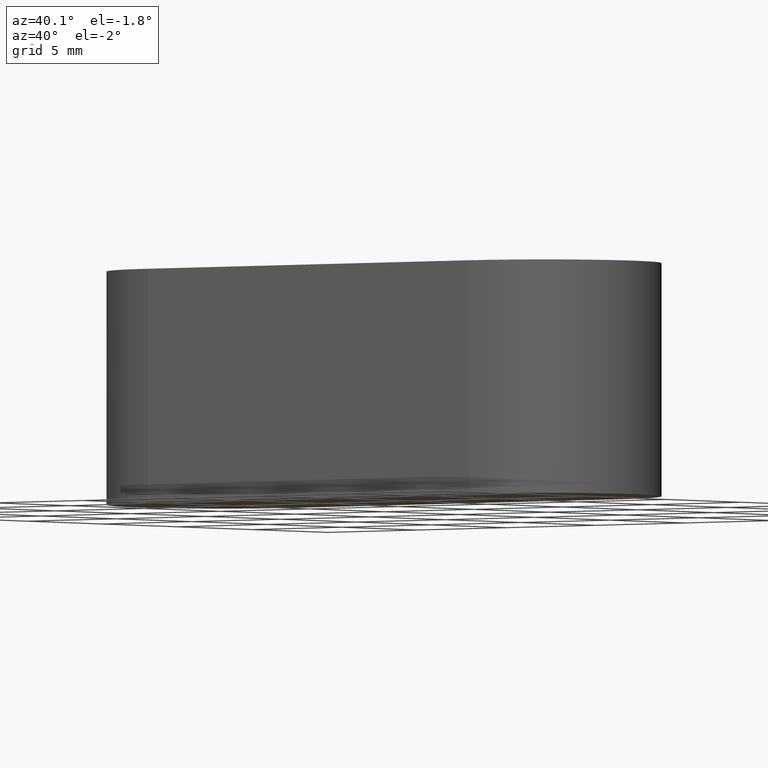
[diagram: clean part render]
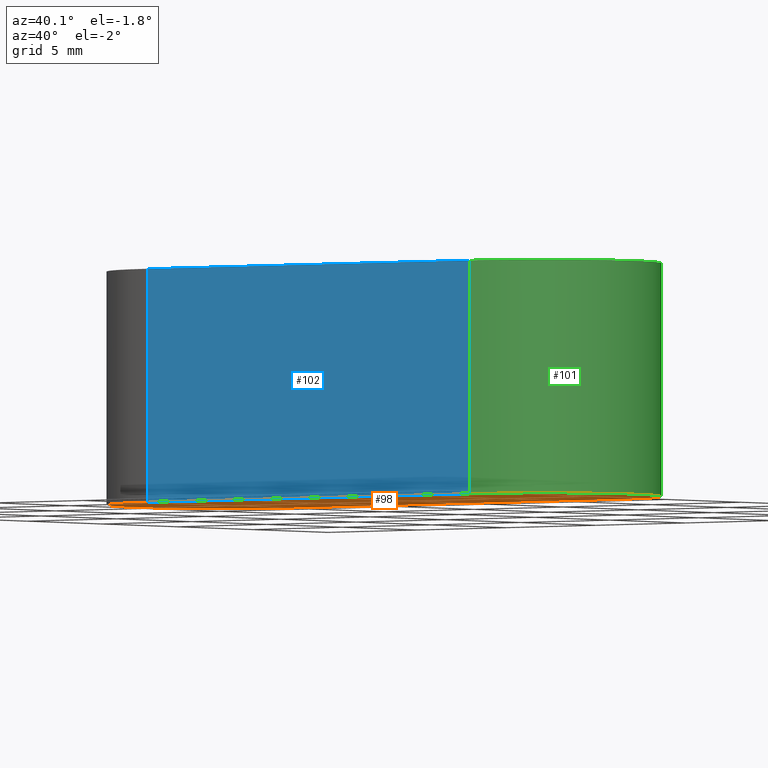
[diagram: same view with three faces highlighted in distinct colors, each labeled with its STEP entity id]
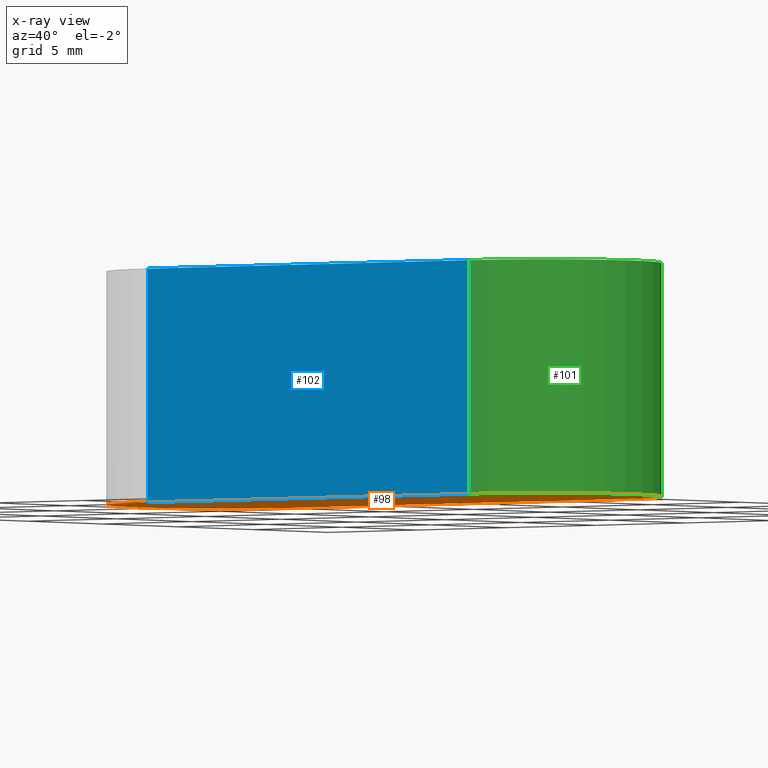
[diagram: x-ray of the same camera — body ghosted, the three highlighted faces saturated]
A machine part, auxiliary view with three faces highlighted in distinct colors.
The next image is the same camera in x-ray (body ghosted, the three faces saturated) — at least one of them is partly hidden behind the body in this view.
Their STEP definitions:

[orange] entity #98 — the highlighted planar face has unit normal (0, 0, 1).
#16=FACE_OUTER_BOUND('',#22,.T.);
#22=EDGE_LOOP('',(#68,#69,#70,#71));
#28=LINE('',#170,#36);
#29=LINE('',#173,#37);
#36=VECTOR('',#140,10.);
#37=VECTOR('',#143,10.);
#44=CIRCLE('',#125,5.);
#45=CIRCLE('',#126,5.);
#48=VERTEX_POINT('',#166);
#49=VERTEX_POINT('',#167);
#50=VERTEX_POINT('',#169);
#51=VERTEX_POINT('',#171);
#56=EDGE_CURVE('',#48,#49,#44,.T.);
#57=EDGE_CURVE('',#50,#48,#28,.T.);
#58=EDGE_CURVE('',#51,#50,#45,.T.);
#59=EDGE_CURVE('',#49,#51,#29,.T.);
#68=ORIENTED_EDGE('',*,*,#56,.F.);
#69=ORIENTED_EDGE('',*,*,#57,.F.);
#70=ORIENTED_EDGE('',*,*,#58,.F.);
#71=ORIENTED_EDGE('',*,*,#59,.F.);
#92=PLANE('',#124);
#98=ADVANCED_FACE('',(#16),#92,.F.);
#124=AXIS2_PLACEMENT_3D('',#165,#136,#137);
#125=AXIS2_PLACEMENT_3D('',#168,#138,#139);
#126=AXIS2_PLACEMENT_3D('',#172,#141,#142);
#136=DIRECTION('center_axis',(0.,0.,1.));
#137=DIRECTION('ref_axis',(1.,0.,0.));
#138=DIRECTION('center_axis',(0.,0.,1.));
#139=DIRECTION('ref_axis',(0.,-1.,0.));
#140=DIRECTION('',(1.,0.,0.));
#141=DIRECTION('center_axis',(0.,0.,1.));
#142=DIRECTION('ref_axis',(-4.44089209850063E-16,1.,0.));
#143=DIRECTION('',(-1.,-1.85037170770859E-16,0.));
#165=CARTESIAN_POINT('Origin',(-1.11022302462516E-15,1.19006027054708E-15,
-5.));
#166=CARTESIAN_POINT('',(9.,-5.,-5.));
#167=CARTESIAN_POINT('',(9.,5.,-5.));
#168=CARTESIAN_POINT('Origin',(9.,2.78214431377604E-15,-5.));
#169=CARTESIAN_POINT('',(-9.,-5.,-5.));
#170=CARTESIAN_POINT('',(-9.,-5.,-5.));
#171=CARTESIAN_POINT('',(-9.00000000000001,5.,-5.));
#172=CARTESIAN_POINT('Origin',(-9.,5.55111512312578E-16,-5.));
#173=CARTESIAN_POINT('',(9.,5.,-5.));

[blue] entity #102 — the highlighted planar face has unit normal (0, -1, 0).
#20=FACE_OUTER_BOUND('',#26,.T.);
#26=EDGE_LOOP('',(#84,#85,#86,#87));
#28=LINE('',#170,#36);
#31=LINE('',#179,#39);
#34=LINE('',#187,#42);
#35=LINE('',#189,#43);
#36=VECTOR('',#140,10.);
#39=VECTOR('',#149,10.);
#42=VECTOR('',#158,10.);
#43=VECTOR('',#161,10.);
#48=VERTEX_POINT('',#166);
#50=VERTEX_POINT('',#169);
#52=VERTEX_POINT('',#175);
#55=VERTEX_POINT('',#185);
#57=EDGE_CURVE('',#50,#48,#28,.T.);
#62=EDGE_CURVE('',#52,#50,#31,.T.);
#66=EDGE_CURVE('',#48,#55,#34,.T.);
#67=EDGE_CURVE('',#55,#52,#35,.T.);
#84=ORIENTED_EDGE('',*,*,#67,.T.);
#85=ORIENTED_EDGE('',*,*,#62,.T.);
#86=ORIENTED_EDGE('',*,*,#57,.T.);
#87=ORIENTED_EDGE('',*,*,#66,.T.);
#94=PLANE('',#132);
#102=ADVANCED_FACE('',(#20),#94,.T.);
#132=AXIS2_PLACEMENT_3D('',#188,#159,#160);
#140=DIRECTION('',(1.,0.,0.));
#149=DIRECTION('',(0.,0.,-1.));
#158=DIRECTION('',(0.,0.,1.));
#159=DIRECTION('center_axis',(0.,-1.,0.));
#160=DIRECTION('ref_axis',(0.,0.,-1.));
#161=DIRECTION('',(-1.,0.,0.));
#166=CARTESIAN_POINT('',(9.,-5.,-5.));
#169=CARTESIAN_POINT('',(-9.,-5.,-5.));
#170=CARTESIAN_POINT('',(-9.,-5.,-5.));
#175=CARTESIAN_POINT('',(-9.,-5.,5.));
#179=CARTESIAN_POINT('',(-9.,-5.,0.));
#185=CARTESIAN_POINT('',(9.,-5.,5.));
#187=CARTESIAN_POINT('',(9.,-5.,0.));
#188=CARTESIAN_POINT('Origin',(9.,-5.,0.));
#189=CARTESIAN_POINT('',(-9.,-5.,5.));

[green] entity #101 — the highlighted cylindrical surface (partial cylindrical patch) has radius 5 mm, axis along (0, 0, 1).
#15=CYLINDRICAL_SURFACE('',#130,5.);
#19=FACE_OUTER_BOUND('',#25,.T.);
#25=EDGE_LOOP('',(#80,#81,#82,#83));
#33=LINE('',#183,#41);
#34=LINE('',#187,#42);
#41=VECTOR('',#153,10.);
#42=VECTOR('',#158,10.);
#44=CIRCLE('',#125,5.);
#47=CIRCLE('',#131,5.);
#48=VERTEX_POINT('',#166);
#49=VERTEX_POINT('',#167);
#54=VERTEX_POINT('',#181);
#55=VERTEX_POINT('',#185);
#56=EDGE_CURVE('',#48,#49,#44,.T.);
#64=EDGE_CURVE('',#49,#54,#33,.T.);
#65=EDGE_CURVE('',#54,#55,#47,.T.);
#66=EDGE_CURVE('',#48,#55,#34,.T.);
#80=ORIENTED_EDGE('',*,*,#65,.T.);
#81=ORIENTED_EDGE('',*,*,#66,.F.);
#82=ORIENTED_EDGE('',*,*,#56,.T.);
#83=ORIENTED_EDGE('',*,*,#64,.T.);
#101=ADVANCED_FACE('',(#19),#15,.T.);
#125=AXIS2_PLACEMENT_3D('',#168,#138,#139);
#130=AXIS2_PLACEMENT_3D('',#184,#154,#155);
#131=AXIS2_PLACEMENT_3D('',#186,#156,#157);
#138=DIRECTION('center_axis',(0.,0.,1.));
#139=DIRECTION('ref_axis',(0.,-1.,0.));
#153=DIRECTION('',(0.,0.,1.));
#154=DIRECTION('center_axis',(0.,0.,1.));
#155=DIRECTION('ref_axis',(0.,-1.,0.));
#156=DIRECTION('center_axis',(0.,0.,-1.));
#157=DIRECTION('ref_axis',(0.,-1.,0.));
#158=DIRECTION('',(0.,0.,1.));
#166=CARTESIAN_POINT('',(9.,-5.,-5.));
#167=CARTESIAN_POINT('',(9.,5.,-5.));
#168=CARTESIAN_POINT('Origin',(9.,2.78214431377604E-15,-5.));
#181=CARTESIAN_POINT('',(9.,5.,5.));
#183=CARTESIAN_POINT('',(9.,5.,0.));
#184=CARTESIAN_POINT('Origin',(9.,2.78214431377604E-15,0.));
#185=CARTESIAN_POINT('',(9.,-5.,5.));
#186=CARTESIAN_POINT('Origin',(9.,2.78214431377604E-15,5.));
#187=CARTESIAN_POINT('',(9.,-5.,0.));